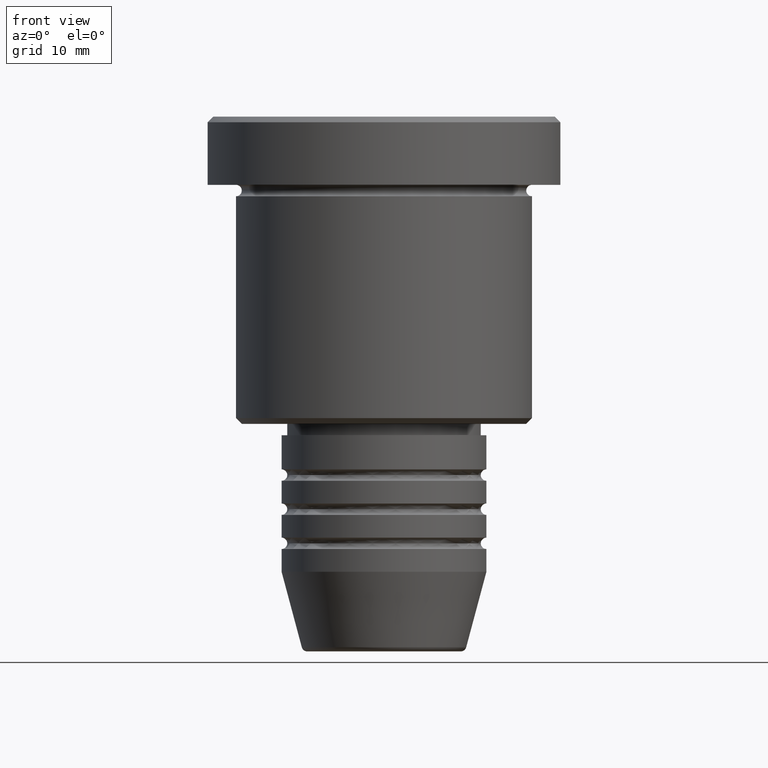
[diagram: clean part render]
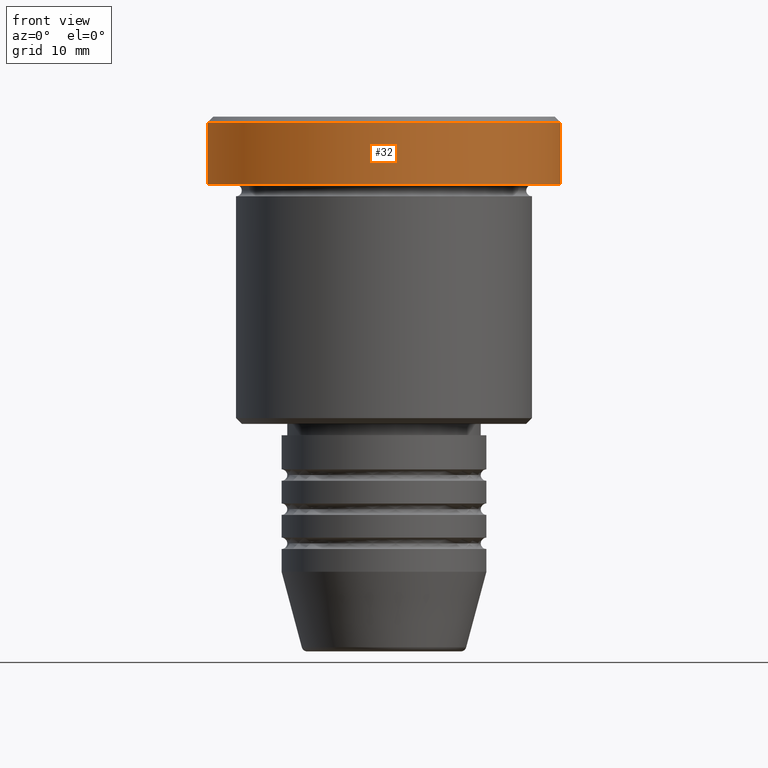
[diagram: same view with one face highlighted and labeled with its STEP entity id]
A machine part, front view. The second image highlights one B-rep face of the part: STEP entity #32.
In plain terms, the highlighted cylindrical surface (partial cylindrical patch) has radius 15.5 mm, axis along (-0, -0, 1).
Its self-contained STEP definition (entity closure, byte-faithful):
#5 = EDGE_CURVE ( 'NONE', #31, #296, #699, .T. ) ;
#31 = VERTEX_POINT ( 'NONE', #253 ) ;
#32 = ADVANCED_FACE ( 'NONE', ( #357 ), #265, .T. ) ;
#120 = ORIENTED_EDGE ( 'NONE', *, *, #497, .F. ) ;
#129 = VECTOR ( 'NONE', #465, 1000.000000000000000 ) ;
#145 = AXIS2_PLACEMENT_3D ( 'NONE', #472, #1018, #289 ) ;
#157 = DIRECTION ( 'NONE',  ( -0.000000000000000000, -0.000000000000000000, 1.000000000000000000 ) ) ;
#186 = CARTESIAN_POINT ( 'NONE',  ( 15.50000000000000000, 0.000000000000000000, 0.000000000000000000 ) ) ;
#253 = CARTESIAN_POINT ( 'NONE',  ( 15.50000000000000000, 0.000000000000000000, -0.5000000000000057732 ) ) ;
#265 = CYLINDRICAL_SURFACE ( 'NONE', #380, 15.50000000000000000 ) ;
#288 = CARTESIAN_POINT ( 'NONE',  ( -15.50000000000000000, 1.898202538678397557E-15, -0.5000000000000057732 ) ) ;
#289 = DIRECTION ( 'NONE',  ( 1.000000000000000000, 0.000000000000000000, 0.000000000000000000 ) ) ;
#296 = VERTEX_POINT ( 'NONE', #288 ) ;
#299 = AXIS2_PLACEMENT_3D ( 'NONE', #331, #694, #1061 ) ;
#304 = EDGE_LOOP ( 'NONE', ( #120, #378, #1115, #476 ) ) ;
#309 = VERTEX_POINT ( 'NONE', #575 ) ;
#331 = CARTESIAN_POINT ( 'NONE',  ( 0.000000000000000000, 0.000000000000000000, -0.5000000000000057732 ) ) ;
#357 = FACE_OUTER_BOUND ( 'NONE', #304, .T. ) ;
#378 = ORIENTED_EDGE ( 'NONE', *, *, #848, .T. ) ;
#380 = AXIS2_PLACEMENT_3D ( 'NONE', #714, #613, #812 ) ;
#405 = CIRCLE ( 'NONE', #145, 15.50000000000000000 ) ;
#465 = DIRECTION ( 'NONE',  ( -0.000000000000000000, -0.000000000000000000, 1.000000000000000000 ) ) ;
#472 = CARTESIAN_POINT ( 'NONE',  ( 0.000000000000000000, 0.000000000000000000, -5.999999999999995559 ) ) ;
#476 = ORIENTED_EDGE ( 'NONE', *, *, #5, .T. ) ;
#497 = EDGE_CURVE ( 'NONE', #309, #296, #990, .T. ) ;
#575 = CARTESIAN_POINT ( 'NONE',  ( -15.50000000000000000, 1.898202538678397557E-15, -5.999999999999995559 ) ) ;
#613 = DIRECTION ( 'NONE',  ( -0.000000000000000000, -0.000000000000000000, 1.000000000000000000 ) ) ;
#694 = DIRECTION ( 'NONE',  ( 0.000000000000000000, 0.000000000000000000, -1.000000000000000000 ) ) ;
#699 = CIRCLE ( 'NONE', #299, 15.50000000000000000 ) ;
#714 = CARTESIAN_POINT ( 'NONE',  ( 0.000000000000000000, 0.000000000000000000, 0.000000000000000000 ) ) ;
#807 = CARTESIAN_POINT ( 'NONE',  ( -15.50000000000000000, 1.898202538678397557E-15, 0.000000000000000000 ) ) ;
#812 = DIRECTION ( 'NONE',  ( 1.000000000000000000, 0.000000000000000000, 0.000000000000000000 ) ) ;
#848 = EDGE_CURVE ( 'NONE', #309, #1089, #405, .T. ) ;
#919 = LINE ( 'NONE', #186, #129 ) ;
#945 = EDGE_CURVE ( 'NONE', #1089, #31, #919, .T. ) ;
#990 = LINE ( 'NONE', #807, #1141 ) ;
#1001 = CARTESIAN_POINT ( 'NONE',  ( 15.50000000000000000, 0.000000000000000000, -5.999999999999995559 ) ) ;
#1018 = DIRECTION ( 'NONE',  ( -0.000000000000000000, -0.000000000000000000, 1.000000000000000000 ) ) ;
#1061 = DIRECTION ( 'NONE',  ( 1.000000000000000000, 0.000000000000000000, 0.000000000000000000 ) ) ;
#1089 = VERTEX_POINT ( 'NONE', #1001 ) ;
#1115 = ORIENTED_EDGE ( 'NONE', *, *, #945, .T. ) ;
#1141 = VECTOR ( 'NONE', #157, 1000.000000000000000 ) ;